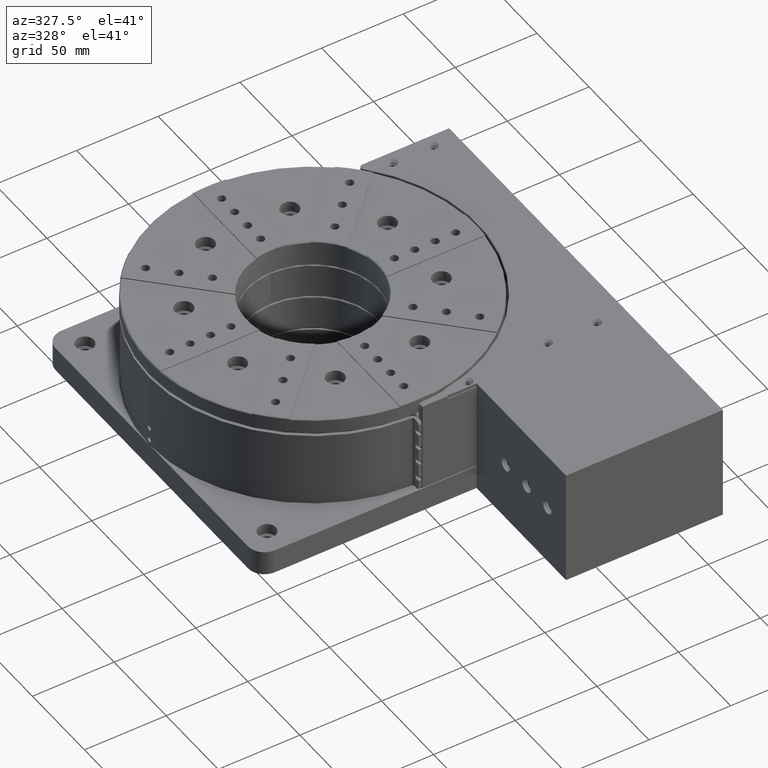
[diagram: clean part render]
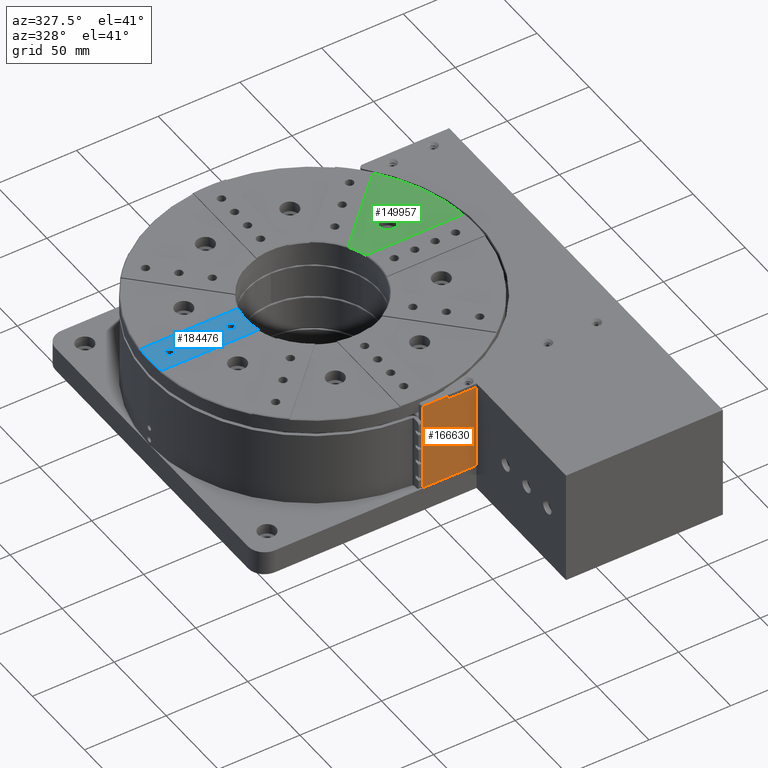
[diagram: same view with three faces highlighted in distinct colors, each labeled with its STEP entity id]
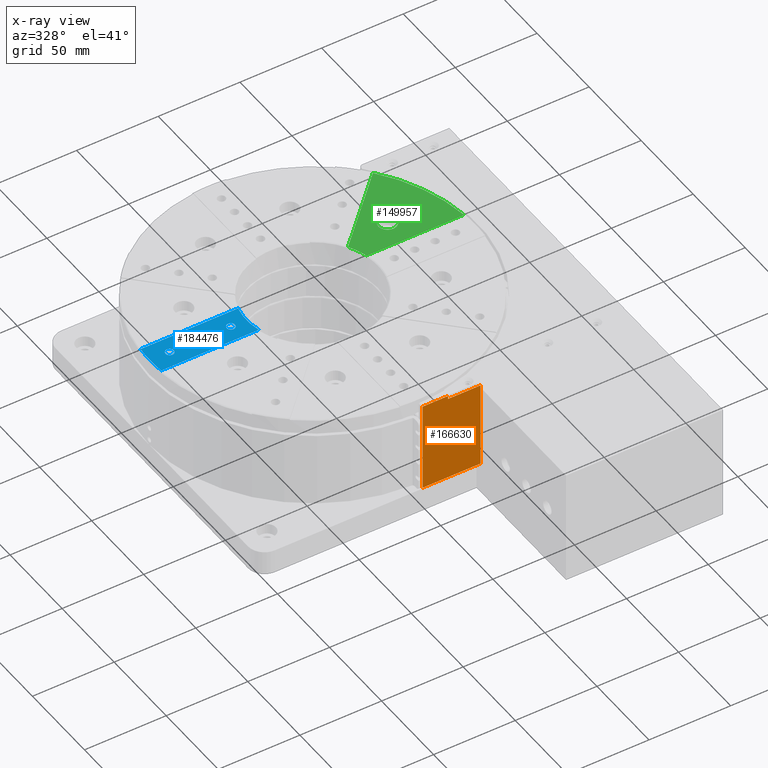
[diagram: x-ray of the same camera — body ghosted, the three highlighted faces saturated]
A machine part, auxiliary view with three faces highlighted in distinct colors.
The next image is the same camera in x-ray (body ghosted, the three faces saturated) — at least one of them is partly hidden behind the body in this view.
Their STEP definitions:

[orange] entity #166630 — the highlighted planar face has unit normal (0, 1, 0).
#6413 = AXIS2_PLACEMENT_3D ( 'NONE', #172303, #57016, #69600 ) ;
#7979 = LINE ( 'NONE', #169735, #57999 ) ;
#18194 = EDGE_CURVE ( 'NONE', #30107, #23861, #7979, .T. ) ;
#18614 = VERTEX_POINT ( 'NONE', #35714 ) ;
#20634 = VERTEX_POINT ( 'NONE', #167250 ) ;
#21992 = DIRECTION ( 'NONE',  ( 0.000000000000000000, 0.000000000000000000, 1.000000000000000000 ) ) ;
#23861 = VERTEX_POINT ( 'NONE', #145989 ) ;
#25123 = PLANE ( 'NONE',  #6413 ) ;
#30107 = VERTEX_POINT ( 'NONE', #118362 ) ;
#35714 = CARTESIAN_POINT ( 'NONE',  ( -55.06816413846749469, -90.46836509788509773, 236.0000000000000000 ) ) ;
#40401 = EDGE_CURVE ( 'NONE', #165891, #44158, #93037, .T. ) ;
#41261 = DIRECTION ( 'NONE',  ( 0.000000000000000000, 0.000000000000000000, 1.000000000000000000 ) ) ;
#44158 = VERTEX_POINT ( 'NONE', #52339 ) ;
#47029 = CARTESIAN_POINT ( 'NONE',  ( -55.06816413846749469, -90.46836509788509773, 235.5000000000000000 ) ) ;
#48504 = DIRECTION ( 'NONE',  ( -1.000000000000000000, 6.421803728054419592E-16, 0.000000000000000000 ) ) ;
#51978 = CARTESIAN_POINT ( 'NONE',  ( -19.56816413846754799, -90.46836509788509773, 235.5000000000000000 ) ) ;
#52339 = CARTESIAN_POINT ( 'NONE',  ( -55.06816413846749469, -90.46836509788509773, 291.5000000000000000 ) ) ;
#52467 = CARTESIAN_POINT ( 'NONE',  ( -39.56816413846754443, -90.46836509788509773, 291.5000000000000000 ) ) ;
#56797 = VECTOR ( 'NONE', #90601, 1000.000000000000000 ) ;
#57016 = DIRECTION ( 'NONE',  ( 6.421803728054419592E-16, 1.000000000000000000, 0.000000000000000000 ) ) ;
#57999 = VECTOR ( 'NONE', #139678, 1000.000000000000000 ) ;
#60072 = ORIENTED_EDGE ( 'NONE', *, *, #18194, .T. ) ;
#61795 = ORIENTED_EDGE ( 'NONE', *, *, #77268, .T. ) ;
#64647 = EDGE_CURVE ( 'NONE', #44158, #18614, #178794, .T. ) ;
#68500 = EDGE_CURVE ( 'NONE', #20634, #30107, #111967, .T. ) ;
#69600 = DIRECTION ( 'NONE',  ( 1.000000000000000000, -6.421803728054419592E-16, 0.000000000000000000 ) ) ;
#71318 = VECTOR ( 'NONE', #109605, 1000.000000000000000 ) ;
#71652 = EDGE_CURVE ( 'NONE', #18614, #20634, #95117, .T. ) ;
#75466 = VECTOR ( 'NONE', #48504, 1000.000000000000000 ) ;
#77268 = EDGE_CURVE ( 'NONE', #23861, #165891, #102243, .T. ) ;
#90601 = DIRECTION ( 'NONE',  ( 0.000000000000000000, 0.000000000000000000, -1.000000000000000000 ) ) ;
#93037 = LINE ( 'NONE', #178363, #75466 ) ;
#95117 = LINE ( 'NONE', #153250, #71318 ) ;
#95915 = VECTOR ( 'NONE', #21992, 1000.000000000000000 ) ;
#102243 = LINE ( 'NONE', #128449, #173482 ) ;
#103028 = ORIENTED_EDGE ( 'NONE', *, *, #68500, .T. ) ;
#109605 = DIRECTION ( 'NONE',  ( 1.000000000000000000, -6.421803728054419592E-16, 0.000000000000000000 ) ) ;
#111967 = LINE ( 'NONE', #51978, #95915 ) ;
#116052 = FACE_OUTER_BOUND ( 'NONE', #164556, .T. ) ;
#118362 = CARTESIAN_POINT ( 'NONE',  ( -19.56816413846754799, -90.46836509788509773, 289.5000000000000000 ) ) ;
#128449 = CARTESIAN_POINT ( 'NONE',  ( -39.56816413846754443, -90.46836509788509773, 235.5000000000000000 ) ) ;
#139678 = DIRECTION ( 'NONE',  ( -1.000000000000000000, 6.421803728054419592E-16, 0.000000000000000000 ) ) ;
#145989 = CARTESIAN_POINT ( 'NONE',  ( -39.56816413846754443, -90.46836509788509773, 289.5000000000000000 ) ) ;
#149682 = ORIENTED_EDGE ( 'NONE', *, *, #71652, .T. ) ;
#153250 = CARTESIAN_POINT ( 'NONE',  ( -19.06816413846754799, -90.46836509788509773, 236.0000000000000000 ) ) ;
#156406 = ORIENTED_EDGE ( 'NONE', *, *, #40401, .T. ) ;
#161449 = ORIENTED_EDGE ( 'NONE', *, *, #64647, .T. ) ;
#164556 = EDGE_LOOP ( 'NONE', ( #149682, #103028, #60072, #61795, #156406, #161449 ) ) ;
#165891 = VERTEX_POINT ( 'NONE', #52467 ) ;
#166630 = ADVANCED_FACE ( 'NONE', ( #116052 ), #25123, .F. ) ;
#167250 = CARTESIAN_POINT ( 'NONE',  ( -19.56816413846754799, -90.46836509788509773, 236.0000000000000000 ) ) ;
#169735 = CARTESIAN_POINT ( 'NONE',  ( -39.06816413846754443, -90.46836509788509773, 289.5000000000000000 ) ) ;
#172303 = CARTESIAN_POINT ( 'NONE',  ( -19.06816413846754799, -90.46836509788509773, 235.5000000000000000 ) ) ;
#173482 = VECTOR ( 'NONE', #41261, 1000.000000000000000 ) ;
#178363 = CARTESIAN_POINT ( 'NONE',  ( -19.06816413846754799, -90.46836509788509773, 291.5000000000000000 ) ) ;
#178794 = LINE ( 'NONE', #47029, #56797 ) ;

[blue] entity #184476 — the highlighted planar face has unit normal (0, 0, 1).
#3306 = EDGE_CURVE ( 'NONE', #69484, #52388, #37390, .T. ) ;
#4127 = DIRECTION ( 'NONE',  ( 1.000000000000000000, 0.000000000000000000, 0.000000000000000000 ) ) ;
#5308 = EDGE_LOOP ( 'NONE', ( #34474, #43498, #79642, #103566, #162868 ) ) ;
#6995 = DIRECTION ( 'NONE',  ( 1.000000000000000000, 0.000000000000000000, 0.000000000000000000 ) ) ;
#8096 = VECTOR ( 'NONE', #14677, 1000.000000000000000 ) ;
#8172 = VERTEX_POINT ( 'NONE', #109792 ) ;
#8238 = CIRCLE ( 'NONE', #116473, 99.50000000000000000 ) ;
#11423 = CIRCLE ( 'NONE', #125704, 2.500000000000002220 ) ;
#13137 = VERTEX_POINT ( 'NONE', #114031 ) ;
#14433 = DIRECTION ( 'NONE',  ( 0.000000000000000000, 0.000000000000000000, 1.000000000000000000 ) ) ;
#14677 = DIRECTION ( 'NONE',  ( -1.000000000000000000, -3.857354105232499796E-17, 0.000000000000000000 ) ) ;
#16670 = CARTESIAN_POINT ( 'NONE',  ( -130.5682107560700160, 14.53165467358086005, 293.0000000000000000 ) ) ;
#17542 = DIRECTION ( 'NONE',  ( 0.000000000000000000, 0.000000000000000000, 1.000000000000000000 ) ) ;
#17636 = CARTESIAN_POINT ( 'NONE',  ( -94.81422966245078499, 4.531654673580870707, 293.0000000000000000 ) ) ;
#18650 = AXIS2_PLACEMENT_3D ( 'NONE', #131884, #150209, #102764 ) ;
#18801 = ORIENTED_EDGE ( 'NONE', *, *, #184437, .F. ) ;
#20068 = LINE ( 'NONE', #64586, #91838 ) ;
#20614 = EDGE_CURVE ( 'NONE', #149190, #104647, #61436, .T. ) ;
#20699 = VERTEX_POINT ( 'NONE', #40823 ) ;
#23624 = DIRECTION ( 'NONE',  ( 1.000000000000000000, 0.000000000000000000, 0.000000000000000000 ) ) ;
#28949 = VERTEX_POINT ( 'NONE', #182947 ) ;
#30158 = LINE ( 'NONE', #71782, #8096 ) ;
#30253 = DIRECTION ( 'NONE',  ( 1.000000000000000000, 0.000000000000000000, 0.000000000000000000 ) ) ;
#30790 = DIRECTION ( 'NONE',  ( 0.000000000000000000, 0.000000000000000000, -1.000000000000000000 ) ) ;
#32093 = DIRECTION ( 'NONE',  ( 0.000000000000000000, 0.000000000000000000, 1.000000000000000000 ) ) ;
#33867 = EDGE_CURVE ( 'NONE', #28949, #167466, #8238, .T. ) ;
#34474 = ORIENTED_EDGE ( 'NONE', *, *, #152247, .T. ) ;
#35009 = CIRCLE ( 'NONE', #112237, 2.500000000000002220 ) ;
#35891 = PLANE ( 'NONE',  #81613 ) ;
#37390 = CIRCLE ( 'NONE', #151705, 2.500000000000002220 ) ;
#37795 = ORIENTED_EDGE ( 'NONE', *, *, #38270, .F. ) ;
#38270 = EDGE_CURVE ( 'NONE', #8172, #20699, #35009, .T. ) ;
#40823 = CARTESIAN_POINT ( 'NONE',  ( -140.5682107560700160, 14.53165467358086005, 293.0000000000000000 ) ) ;
#41291 = CIRCLE ( 'NONE', #149549, 2.500000000000002220 ) ;
#43498 = ORIENTED_EDGE ( 'NONE', *, *, #33867, .T. ) ;
#44131 = CARTESIAN_POINT ( 'NONE',  ( -108.0682107560700018, 14.53165467358086005, 293.0000000000000000 ) ) ;
#46611 = DIRECTION ( 'NONE',  ( 0.000000000000000000, 0.000000000000000000, 1.000000000000000000 ) ) ;
#47666 = AXIS2_PLACEMENT_3D ( 'NONE', #76567, #32093, #91116 ) ;
#48458 = CARTESIAN_POINT ( 'NONE',  ( -118.0682107560699876, 14.53165467358086005, 293.0000000000000000 ) ) ;
#50155 = CARTESIAN_POINT ( 'NONE',  ( -130.5682107560700160, 14.53165467358086005, 293.0000000000000000 ) ) ;
#50821 = CARTESIAN_POINT ( 'NONE',  ( -128.0682107560699876, 14.53165467358086005, 293.0000000000000000 ) ) ;
#52388 = VERTEX_POINT ( 'NONE', #77996 ) ;
#54277 = EDGE_LOOP ( 'NONE', ( #95948, #54497 ) ) ;
#54497 = ORIENTED_EDGE ( 'NONE', *, *, #72201, .F. ) ;
#56555 = CARTESIAN_POINT ( 'NONE',  ( -143.0682107560700160, 14.53165467358086005, 293.0000000000000000 ) ) ;
#57587 = EDGE_LOOP ( 'NONE', ( #120276, #131452 ) ) ;
#58250 = CARTESIAN_POINT ( 'NONE',  ( -155.0682107560699876, 14.53165467358086005, 293.0000000000000000 ) ) ;
#60225 = DIRECTION ( 'NONE',  ( 0.000000000000000000, 0.000000000000000000, 1.000000000000000000 ) ) ;
#61436 = CIRCLE ( 'NONE', #132499, 40.50000000000000000 ) ;
#62663 = CARTESIAN_POINT ( 'NONE',  ( -55.56821075606990235, 14.53165467358086005, 293.0000000000000000 ) ) ;
#64586 = CARTESIAN_POINT ( 'NONE',  ( -169.6540450215024975, 4.531654673580870707, 293.0000000000000000 ) ) ;
#66575 = DIRECTION ( 'NONE',  ( 0.000000000000000000, 0.000000000000000000, 1.000000000000000000 ) ) ;
#66683 = CIRCLE ( 'NONE', #178192, 2.500000000000002220 ) ;
#69484 = VERTEX_POINT ( 'NONE', #163029 ) ;
#70190 = EDGE_LOOP ( 'NONE', ( #116789, #37795 ) ) ;
#70999 = CARTESIAN_POINT ( 'NONE',  ( -118.0682107560699876, 14.53165467358086005, 293.0000000000000000 ) ) ;
#71782 = CARTESIAN_POINT ( 'NONE',  ( -169.6540450215024975, 24.53165467358084939, 293.0000000000000000 ) ) ;
#72201 = EDGE_CURVE ( 'NONE', #52388, #69484, #136309, .T. ) ;
#72801 = VERTEX_POINT ( 'NONE', #127544 ) ;
#74852 = EDGE_CURVE ( 'NONE', #72801, #174452, #148442, .T. ) ;
#76567 = CARTESIAN_POINT ( 'NONE',  ( -105.5682107560699876, 14.53165467358086005, 293.0000000000000000 ) ) ;
#77996 = CARTESIAN_POINT ( 'NONE',  ( -120.5682107560699876, 14.53165467358086005, 293.0000000000000000 ) ) ;
#78524 = VERTEX_POINT ( 'NONE', #133711 ) ;
#79526 = ORIENTED_EDGE ( 'NONE', *, *, #74852, .F. ) ;
#79642 = ORIENTED_EDGE ( 'NONE', *, *, #139926, .T. ) ;
#81504 = CARTESIAN_POINT ( 'NONE',  ( -143.0682107560700160, 14.53165467358086005, 293.0000000000000000 ) ) ;
#81613 = AXIS2_PLACEMENT_3D ( 'NONE', #149264, #46611, #150215 ) ;
#85592 = CARTESIAN_POINT ( 'NONE',  ( -94.81422966245078499, 24.53165467358084939, 293.0000000000000000 ) ) ;
#91116 = DIRECTION ( 'NONE',  ( 1.000000000000000000, 0.000000000000000000, 0.000000000000000000 ) ) ;
#91838 = VECTOR ( 'NONE', #95535, 1000.000000000000000 ) ;
#92849 = DIRECTION ( 'NONE',  ( 0.000000000000000000, 0.000000000000000000, 1.000000000000000000 ) ) ;
#95535 = DIRECTION ( 'NONE',  ( 1.000000000000000000, 5.786031157848699158E-17, 0.000000000000000000 ) ) ;
#95948 = ORIENTED_EDGE ( 'NONE', *, *, #3306, .F. ) ;
#97163 = DIRECTION ( 'NONE',  ( 0.000000000000000000, 0.000000000000000000, 1.000000000000000000 ) ) ;
#102764 = DIRECTION ( 'NONE',  ( 1.000000000000000000, 0.000000000000000000, 0.000000000000000000 ) ) ;
#103566 = ORIENTED_EDGE ( 'NONE', *, *, #114548, .T. ) ;
#104647 = VERTEX_POINT ( 'NONE', #85592 ) ;
#106774 = DIRECTION ( 'NONE',  ( 0.000000000000000000, 0.000000000000000000, 1.000000000000000000 ) ) ;
#108488 = FACE_BOUND ( 'NONE', #54277, .T. ) ;
#109792 = CARTESIAN_POINT ( 'NONE',  ( -145.5682107560700160, 14.53165467358086005, 293.0000000000000000 ) ) ;
#111166 = DIRECTION ( 'NONE',  ( 1.000000000000000000, 0.000000000000000000, 0.000000000000000000 ) ) ;
#111350 = VERTEX_POINT ( 'NONE', #50821 ) ;
#112237 = AXIS2_PLACEMENT_3D ( 'NONE', #81504, #139668, #6995 ) ;
#113283 = EDGE_CURVE ( 'NONE', #111350, #78524, #11423, .T. ) ;
#114031 = CARTESIAN_POINT ( 'NONE',  ( -154.5644228048145123, 4.531654673580870707, 293.0000000000000000 ) ) ;
#114548 = EDGE_CURVE ( 'NONE', #13137, #149190, #20068, .T. ) ;
#116473 = AXIS2_PLACEMENT_3D ( 'NONE', #146115, #14433, #161626 ) ;
#116789 = ORIENTED_EDGE ( 'NONE', *, *, #138447, .F. ) ;
#120276 = ORIENTED_EDGE ( 'NONE', *, *, #113283, .F. ) ;
#121702 = DIRECTION ( 'NONE',  ( 1.000000000000000000, 3.555112308791975364E-15, 0.000000000000000000 ) ) ;
#125058 = CIRCLE ( 'NONE', #47666, 2.500000000000002220 ) ;
#125704 = AXIS2_PLACEMENT_3D ( 'NONE', #50155, #66575, #184775 ) ;
#127544 = CARTESIAN_POINT ( 'NONE',  ( -103.0682107560699876, 14.53165467358086005, 293.0000000000000000 ) ) ;
#130188 = EDGE_CURVE ( 'NONE', #78524, #111350, #41291, .T. ) ;
#131452 = ORIENTED_EDGE ( 'NONE', *, *, #130188, .F. ) ;
#131884 = CARTESIAN_POINT ( 'NONE',  ( -105.5682107560699876, 14.53165467358086005, 293.0000000000000000 ) ) ;
#132499 = AXIS2_PLACEMENT_3D ( 'NONE', #62663, #30790, #121702 ) ;
#133711 = CARTESIAN_POINT ( 'NONE',  ( -133.0682107560700160, 14.53165467358086005, 293.0000000000000000 ) ) ;
#136309 = CIRCLE ( 'NONE', #167138, 2.500000000000002220 ) ;
#137571 = FACE_BOUND ( 'NONE', #185006, .T. ) ;
#138447 = EDGE_CURVE ( 'NONE', #20699, #8172, #66683, .T. ) ;
#138486 = DIRECTION ( 'NONE',  ( 1.000000000000000000, 0.000000000000000000, 0.000000000000000000 ) ) ;
#139668 = DIRECTION ( 'NONE',  ( 0.000000000000000000, 0.000000000000000000, 1.000000000000000000 ) ) ;
#139926 = EDGE_CURVE ( 'NONE', #167466, #13137, #144407, .T. ) ;
#144407 = CIRCLE ( 'NONE', #190765, 99.50000000000000000 ) ;
#146115 = CARTESIAN_POINT ( 'NONE',  ( -55.56821075606990235, 14.53165467358086005, 293.0000000000000000 ) ) ;
#148442 = CIRCLE ( 'NONE', #18650, 2.500000000000002220 ) ;
#149190 = VERTEX_POINT ( 'NONE', #17636 ) ;
#149264 = CARTESIAN_POINT ( 'NONE',  ( -55.56821075606990235, 14.53165467358086005, 293.0000000000000000 ) ) ;
#149549 = AXIS2_PLACEMENT_3D ( 'NONE', #16670, #60225, #30253 ) ;
#150209 = DIRECTION ( 'NONE',  ( 0.000000000000000000, 0.000000000000000000, 1.000000000000000000 ) ) ;
#150215 = DIRECTION ( 'NONE',  ( 1.000000000000000000, 0.000000000000000000, 0.000000000000000000 ) ) ;
#151705 = AXIS2_PLACEMENT_3D ( 'NONE', #70999, #97163, #23624 ) ;
#152247 = EDGE_CURVE ( 'NONE', #104647, #28949, #30158, .T. ) ;
#153069 = FACE_BOUND ( 'NONE', #70190, .T. ) ;
#161626 = DIRECTION ( 'NONE',  ( 1.000000000000000000, 0.000000000000000000, 0.000000000000000000 ) ) ;
#162868 = ORIENTED_EDGE ( 'NONE', *, *, #20614, .T. ) ;
#163029 = CARTESIAN_POINT ( 'NONE',  ( -115.5682107560699876, 14.53165467358086005, 293.0000000000000000 ) ) ;
#166476 = CARTESIAN_POINT ( 'NONE',  ( -55.56821075606990235, 14.53165467358086005, 293.0000000000000000 ) ) ;
#167138 = AXIS2_PLACEMENT_3D ( 'NONE', #48458, #17542, #138486 ) ;
#167466 = VERTEX_POINT ( 'NONE', #58250 ) ;
#168555 = FACE_OUTER_BOUND ( 'NONE', #5308, .T. ) ;
#174452 = VERTEX_POINT ( 'NONE', #44131 ) ;
#178192 = AXIS2_PLACEMENT_3D ( 'NONE', #56555, #106774, #4127 ) ;
#179314 = FACE_BOUND ( 'NONE', #57587, .T. ) ;
#182947 = CARTESIAN_POINT ( 'NONE',  ( -154.5644228048145123, 24.53165467358084939, 293.0000000000000000 ) ) ;
#184437 = EDGE_CURVE ( 'NONE', #174452, #72801, #125058, .T. ) ;
#184476 = ADVANCED_FACE ( 'NONE', ( #137571, #108488, #179314, #153069, #168555 ), #35891, .T. ) ;
#184775 = DIRECTION ( 'NONE',  ( 1.000000000000000000, 0.000000000000000000, 0.000000000000000000 ) ) ;
#185006 = EDGE_LOOP ( 'NONE', ( #79526, #18801 ) ) ;
#190765 = AXIS2_PLACEMENT_3D ( 'NONE', #166476, #92849, #111166 ) ;

[green] entity #149957 — the highlighted planar face has unit normal (0, 0, 1).
#1168 = CARTESIAN_POINT ( 'NONE',  ( -20.74601684092694853, 35.21171296499249337, 292.5000000000000000 ) ) ;
#3286 = VERTEX_POINT ( 'NONE', #168915 ) ;
#8089 = ORIENTED_EDGE ( 'NONE', *, *, #171508, .T. ) ;
#14007 = VERTEX_POINT ( 'NONE', #92318 ) ;
#14370 = AXIS2_PLACEMENT_3D ( 'NONE', #100774, #131785, #157014 ) ;
#19738 = VERTEX_POINT ( 'NONE', #172473 ) ;
#24689 = AXIS2_PLACEMENT_3D ( 'NONE', #181995, #68318, #98330 ) ;
#27073 = ORIENTED_EDGE ( 'NONE', *, *, #180650, .T. ) ;
#27572 = DIRECTION ( 'NONE',  ( 0.000000000000000000, 0.000000000000000000, 1.000000000000000000 ) ) ;
#27885 = ORIENTED_EDGE ( 'NONE', *, *, #167216, .F. ) ;
#31686 = CIRCLE ( 'NONE', #149305, 5.500000000000000000 ) ;
#32204 = EDGE_CURVE ( 'NONE', #32746, #14007, #70029, .T. ) ;
#32746 = VERTEX_POINT ( 'NONE', #168441 ) ;
#35270 = CARTESIAN_POINT ( 'NONE',  ( -55.56821075606990235, 14.53165467358086005, 292.5000000000000000 ) ) ;
#35717 = FACE_BOUND ( 'NONE', #70907, .T. ) ;
#43613 = LINE ( 'NONE', #159877, #149125 ) ;
#43710 = AXIS2_PLACEMENT_3D ( 'NONE', #35270, #94302, #153419 ) ;
#44910 = DIRECTION ( 'NONE',  ( 1.000000000000000000, 0.000000000000000000, 0.000000000000000000 ) ) ;
#68318 = DIRECTION ( 'NONE',  ( 0.000000000000000000, 0.000000000000000000, 1.000000000000000000 ) ) ;
#70029 = CIRCLE ( 'NONE', #14370, 5.500000000000000000 ) ;
#70907 = EDGE_LOOP ( 'NONE', ( #27073, #103760 ) ) ;
#73865 = CIRCLE ( 'NONE', #182172, 99.50000000000000000 ) ;
#84423 = VERTEX_POINT ( 'NONE', #178226 ) ;
#89111 = DIRECTION ( 'NONE',  ( -1.000000000000000000, 1.928677052616249898E-17, 0.000000000000000000 ) ) ;
#91311 = DIRECTION ( 'NONE',  ( 0.7071067811865474617, 0.7071067811865474617, 0.000000000000000000 ) ) ;
#92318 = CARTESIAN_POINT ( 'NONE',  ( 12.29365768844192175, 40.36278635822445437, 292.5000000000000000 ) ) ;
#93066 = VECTOR ( 'NONE', #91311, 1000.000000000000114 ) ;
#94302 = DIRECTION ( 'NONE',  ( 0.000000000000000000, 0.000000000000000000, -1.000000000000000000 ) ) ;
#95655 = ORIENTED_EDGE ( 'NONE', *, *, #100494, .F. ) ;
#98330 = DIRECTION ( 'NONE',  ( 1.000000000000000000, 0.000000000000000000, 0.000000000000000000 ) ) ;
#100494 = EDGE_CURVE ( 'NONE', #3286, #84423, #43613, .T. ) ;
#100774 = CARTESIAN_POINT ( 'NONE',  ( 6.793657688441929743, 40.36278635822445437, 292.5000000000000000 ) ) ;
#103760 = ORIENTED_EDGE ( 'NONE', *, *, #32204, .T. ) ;
#116835 = DIRECTION ( 'NONE',  ( 0.000000000000000000, 0.000000000000000000, -1.000000000000000000 ) ) ;
#126198 = EDGE_LOOP ( 'NONE', ( #95655, #161394, #27885, #8089 ) ) ;
#131785 = DIRECTION ( 'NONE',  ( 0.000000000000000000, 0.000000000000000000, -1.000000000000000000 ) ) ;
#143842 = FACE_OUTER_BOUND ( 'NONE', #126198, .T. ) ;
#145202 = EDGE_CURVE ( 'NONE', #3286, #19738, #73865, .T. ) ;
#145689 = CARTESIAN_POINT ( 'NONE',  ( -55.56821075606990235, 14.53165467358086005, 292.5000000000000000 ) ) ;
#147831 = CARTESIAN_POINT ( 'NONE',  ( 6.793657688441929743, 40.36278635822445437, 292.5000000000000000 ) ) ;
#149125 = VECTOR ( 'NONE', #89111, 1000.000000000000000 ) ;
#149305 = AXIS2_PLACEMENT_3D ( 'NONE', #147831, #116835, #191430 ) ;
#149957 = ADVANCED_FACE ( 'NONE', ( #35717, #143842 ), #151948, .T. ) ;
#150900 = VERTEX_POINT ( 'NONE', #1168 ) ;
#151948 = PLANE ( 'NONE',  #24689 ) ;
#153419 = DIRECTION ( 'NONE',  ( 1.000000000000000000, 1.756139815186397388E-15, 0.000000000000000000 ) ) ;
#157014 = DIRECTION ( 'NONE',  ( 1.000000000000000000, 0.000000000000000000, 0.000000000000000000 ) ) ;
#159877 = CARTESIAN_POINT ( 'NONE',  ( -31.42607513233859606, 24.53165467358084939, 292.5000000000000000 ) ) ;
#161394 = ORIENTED_EDGE ( 'NONE', *, *, #145202, .T. ) ;
#166834 = LINE ( 'NONE', #181404, #93066 ) ;
#167216 = EDGE_CURVE ( 'NONE', #150900, #19738, #166834, .T. ) ;
#168441 = CARTESIAN_POINT ( 'NONE',  ( 1.293657688441931963, 40.36278635822445437, 292.5000000000000000 ) ) ;
#168915 = CARTESIAN_POINT ( 'NONE',  ( 43.42800129267465792, 24.53165467358084939, 292.5000000000000000 ) ) ;
#171508 = EDGE_CURVE ( 'NONE', #150900, #84423, #176755, .T. ) ;
#172473 = CARTESIAN_POINT ( 'NONE',  ( 21.50374990724440138, 77.46147971316389658, 292.5000000000000000 ) ) ;
#176755 = CIRCLE ( 'NONE', #43710, 40.50000000000000000 ) ;
#178226 = CARTESIAN_POINT ( 'NONE',  ( -16.32219184968905168, 24.53165467358084939, 292.5000000000000000 ) ) ;
#180650 = EDGE_CURVE ( 'NONE', #14007, #32746, #31686, .T. ) ;
#181404 = CARTESIAN_POINT ( 'NONE',  ( -31.42607513233859606, 24.53165467358084939, 292.5000000000000000 ) ) ;
#181995 = CARTESIAN_POINT ( 'NONE',  ( -55.56821075606990235, 14.53165467358086005, 292.5000000000000000 ) ) ;
#182172 = AXIS2_PLACEMENT_3D ( 'NONE', #145689, #27572, #44910 ) ;
#191430 = DIRECTION ( 'NONE',  ( 1.000000000000000000, 0.000000000000000000, 0.000000000000000000 ) ) ;